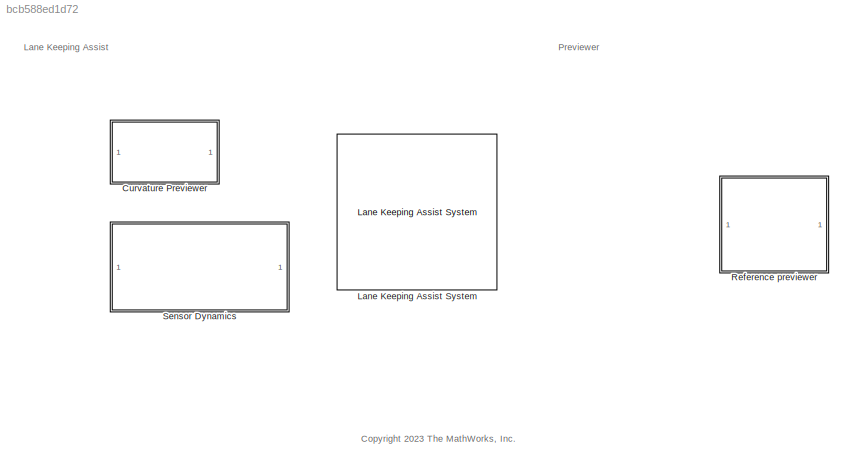
MODEL slx_bcb588ed1d72
KIND library
CONFIG AbsTol = auto
CONFIG EnableMultiTasking = off
CONFIG FixedStep = auto
CONFIG MaxStep = auto
CONFIG MinStep = auto
CONFIG RelTol = 1e-3
CONFIG SampleTimeConstraint = Unconstrained
CONFIG SolverName = VariableStepAuto
CONFIG StartTime = 0.0
CONFIG StopTime = 10.0
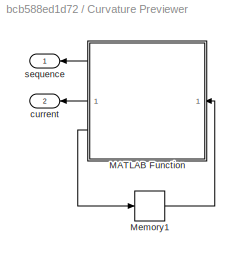
BLOCK [SubSystem] Curvature Previewer
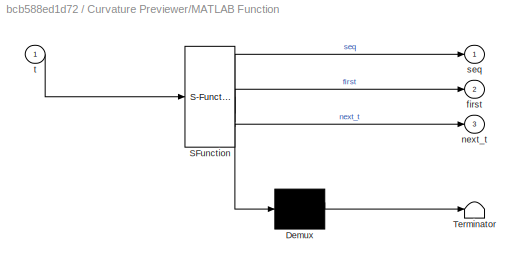
BLOCK [SubSystem] Curvature Previewer/MATLAB Function
  ErrorFcn = Stateflow.Translate.translate
  PermitHierarchicalResolution = ExplicitOnly
  SFBlockType = MATLAB Function
  TreatAsAtomicUnit = on
BLOCK [Demux] Curvature Previewer/MATLAB Function/ Demux 
  Outputs = 1
BLOCK [S-Function] Curvature Previewer/MATLAB Function/ SFunction 
  EnableBusSupport = off
  FunctionName = sf_sfun
  Parameters = data,steps
  PortCounts = [1 4]
  SFcnIsStateOwnerBlock = off
  SFunctionDeploymentMode = off
  Tag = Stateflow S-Function 1
BLOCK [Terminator] Curvature Previewer/MATLAB Function/ Terminator 
BLOCK [Outport] Curvature Previewer/MATLAB Function/first
  Port = 2
  VectorParamsAs1DForOutWhenUnconnected = off
BLOCK [Outport] Curvature Previewer/MATLAB Function/next_t
  Port = 3
  VectorParamsAs1DForOutWhenUnconnected = off
BLOCK [Outport] Curvature Previewer/MATLAB Function/seq
  VectorParamsAs1DForOutWhenUnconnected = off
BLOCK [Inport] Curvature Previewer/MATLAB Function/t
BLOCK [Memory] Curvature Previewer/Memory1
  InheritSampleTime = on
  LinearizeAsDelay = on
BLOCK [Outport] Curvature Previewer/current
  Port = 2
  VectorParamsAs1DForOutWhenUnconnected = off
BLOCK [Outport] Curvature Previewer/sequence
  VectorParamsAs1DForOutWhenUnconnected = off
BLOCK [Reference] Lane Keeping Assist System  REF=mpcadaslib/Lane Keeping Assist System
  LibrarySourceBlock = mpclib/Automated Driving/Lane Keeping Assist System
  SourceBlock = mpcadaslib/Lane Keeping Assist System
  SourceType = Lane Keeping Assist (LKA) System
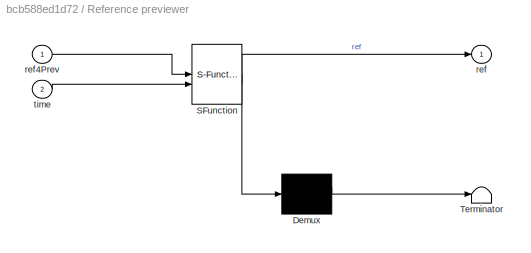
BLOCK [SubSystem] Reference previewer
  ErrorFcn = Stateflow.Translate.translate
  PermitHierarchicalResolution = ExplicitOnly
  SFBlockType = MATLAB Function
  SystemSampleTime = Ts
  TreatAsAtomicUnit = on
BLOCK [Demux] Reference previewer/ Demux 
  Outputs = 1
BLOCK [S-Function] Reference previewer/ SFunction 
  EnableBusSupport = off
  FunctionName = sf_sfun
  PortCounts = [2 2]
  SFcnIsStateOwnerBlock = off
  SFunctionDeploymentMode = off
  Tag = Stateflow S-Function 2
BLOCK [Terminator] Reference previewer/ Terminator 
BLOCK [Outport] Reference previewer/ref
  VectorParamsAs1DForOutWhenUnconnected = off
BLOCK [Inport] Reference previewer/ref4Prev
BLOCK [Inport] Reference previewer/time
  Port = 2
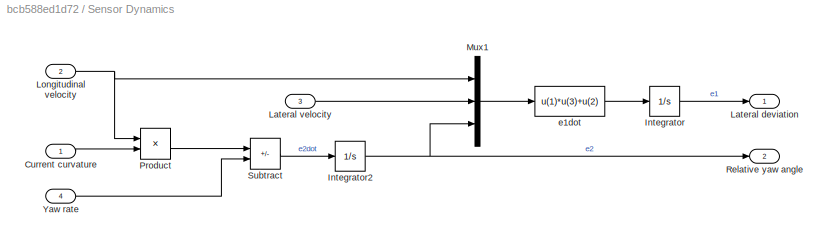
BLOCK [SubSystem] Sensor Dynamics
BLOCK [Inport] Sensor Dynamics/Current curvature
BLOCK [Integrator] Sensor Dynamics/Integrator
BLOCK [Integrator] Sensor Dynamics/Integrator2
BLOCK [Outport] Sensor Dynamics/Lateral deviation
  VectorParamsAs1DForOutWhenUnconnected = off
BLOCK [Inport] Sensor Dynamics/Lateral velocity
  Port = 3
BLOCK [Inport] Sensor Dynamics/Longitudinal velocity
  Port = 2
BLOCK [Mux] Sensor Dynamics/Mux1
  DisplayOption = bar
  Inputs = [1 1 1]
BLOCK [Product] Sensor Dynamics/Product
BLOCK [Outport] Sensor Dynamics/Relative yaw angle
  Port = 2
  VectorParamsAs1DForOutWhenUnconnected = off
BLOCK [Sum] Sensor Dynamics/Subtract
  IconShape = rectangular
  Inputs = -+
BLOCK [Inport] Sensor Dynamics/Yaw rate
  Port = 4
BLOCK [Fcn] Sensor Dynamics/e1dot
  Expr = u(1)*u(3)+u(2)
ANNOTATION (root): <copyright redacted>
ANNOTATION (root): Lane Keeping Assist
ANNOTATION (root): Previewer
LINE Curvature Previewer/MATLAB Function:1 -> Curvature Previewer/sequence:1
LINE Curvature Previewer/MATLAB Function:2 -> Curvature Previewer/current:1
LINE Curvature Previewer/MATLAB Function:3 -> Curvature Previewer/Memory1:1
LINE Curvature Previewer/Memory1:1 -> Curvature Previewer/MATLAB Function:1
LINE Sensor Dynamics/Current curvature:1 -> Sensor Dynamics/Product:2
NET Sensor Dynamics/Integrator2:1 -> Sensor Dynamics/Mux1:3, Sensor Dynamics/Relative yaw angle:1
LINE Sensor Dynamics/Integrator:1 -> Sensor Dynamics/Lateral deviation:1
LINE Sensor Dynamics/Lateral velocity:1 -> Sensor Dynamics/Mux1:2
NET Sensor Dynamics/Longitudinal velocity:1 -> Sensor Dynamics/Mux1:1, Sensor Dynamics/Product:1
LINE Sensor Dynamics/Mux1:1 -> Sensor Dynamics/e1dot:1
LINE Sensor Dynamics/Product:1 -> Sensor Dynamics/Subtract:1
LINE Sensor Dynamics/Subtract:1 -> Sensor Dynamics/Integrator2:1
LINE Sensor Dynamics/Yaw rate:1 -> Sensor Dynamics/Subtract:2
LINE Sensor Dynamics/e1dot:1 -> Sensor Dynamics/Integrator:1
note: NET lines group one-source signal fan-out (src -> all destinations, sorted); 1:1 wires keep LINE
CHART Curvature Previewer/MATLAB Function states=1 transitions=1
  STATE_LABEL 'eML_blk_kernel()'
  STATE_LABEL "SCRIPT:\nfunction [seq,first,next_t] = fcn(data,steps,t)\n%#codegen\n[seq,first,next_t] = mpcblock_preview('md',data,steps,t);"
CHART Reference previewer states=1 transitions=1
  STATE_LABEL 'eML_blk_kernel()'
  STATE_LABEL "SCRIPT:\nfunction ref = previewer(ref4Prev, time)\n% Get previewed reference trajectory\n\n% Previw horizon is 7 sampling times (i.e. 7*0.1 = 0.7 seconds).\n% Reference contains 2 signals (i.e. Y position and yaw angle).\nref = zeros(7,2);\n\n%reference = load('reference');\n\ni = int32(time*10+1);\nref(:,:) = ref4Prev(10*(i:i+6),2:3); "
CHART  states=0 transitions=0
CHART  states=0 transitions=0
